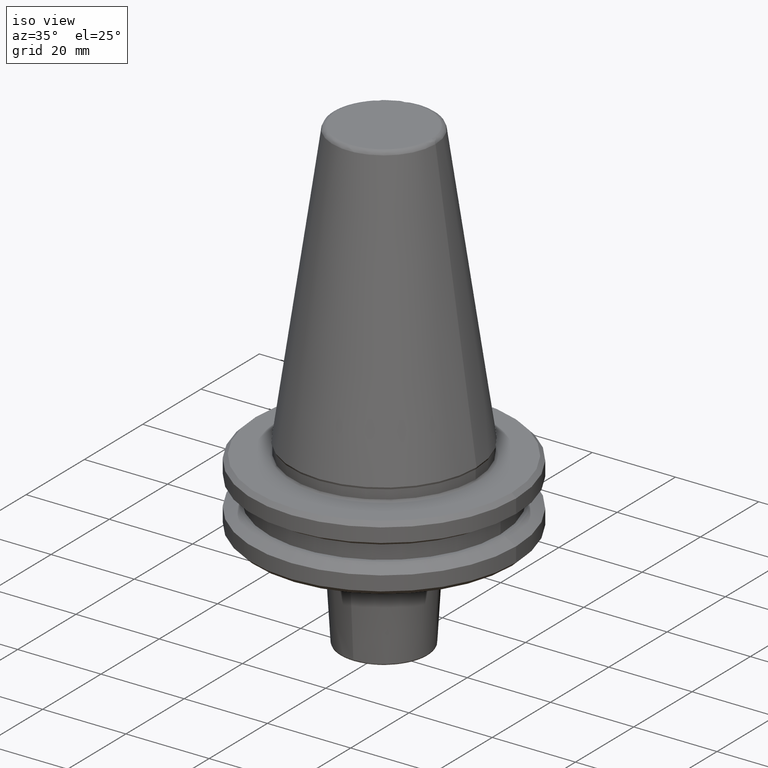
[diagram: clean part render]
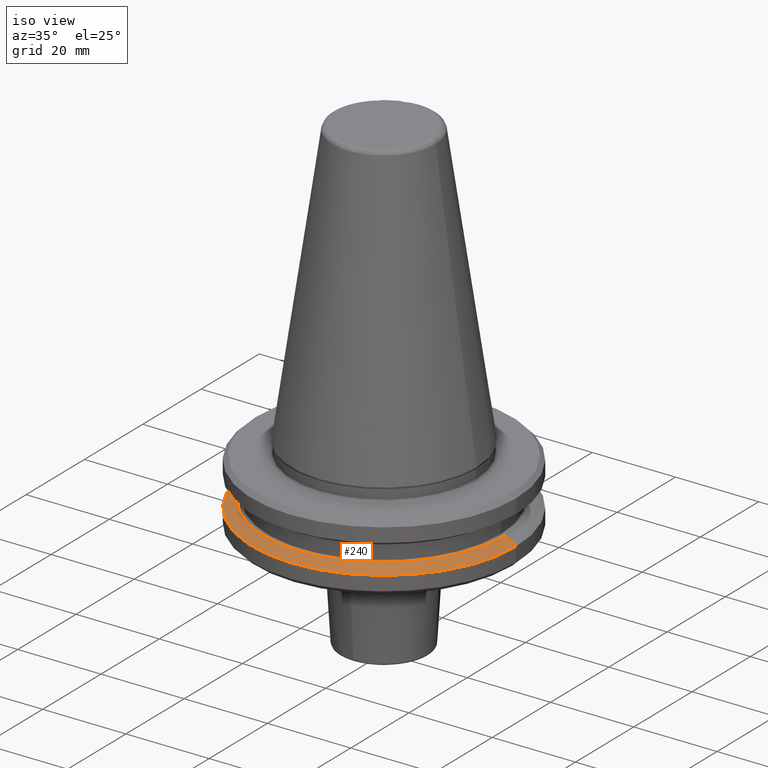
[diagram: same view with one face highlighted and labeled with its STEP entity id]
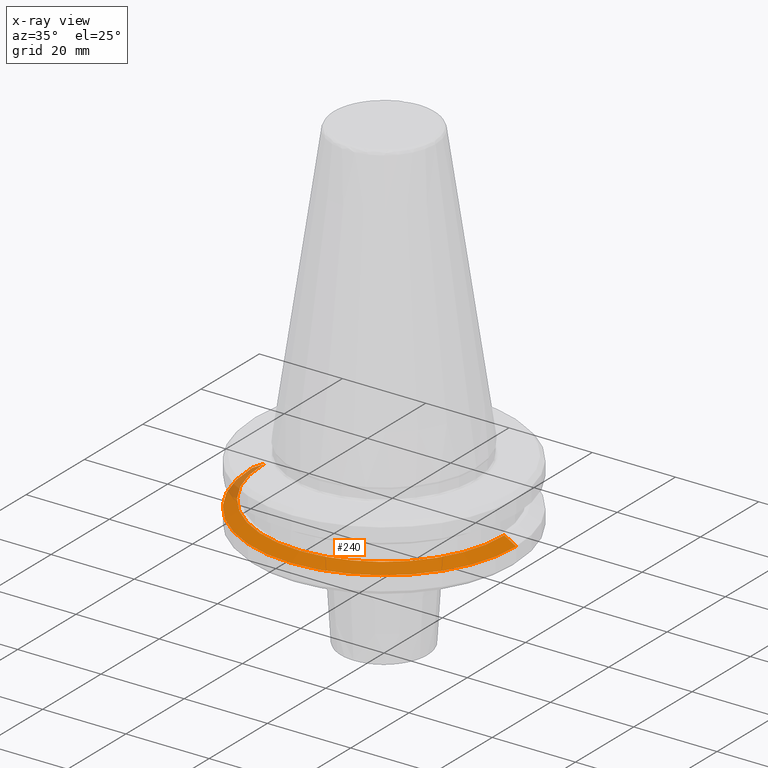
[diagram: x-ray of the same camera — body ghosted, the highlighted face saturated]
A machine part, iso view. The second image highlights one B-rep face of the part: STEP entity #240.
The next image is the same camera in x-ray: the body ghosted, the highlighted face saturated — about 5% of this face is hidden behind the body in this view.
In plain terms, the highlighted conical surface has half-angle 60 deg.
Its self-contained STEP definition (entity closure, byte-faithful):
#8 = CARTESIAN_POINT ( 'NONE',  ( -31.75000000000000000, 3.888253587292846500E-015, -14.62183664205671200 ) ) ;
#16 = CONICAL_SURFACE ( 'NONE', #1538, 31.75000000000000000, 1.047197551196604300 ) ;
#23 = DIRECTION ( 'NONE',  ( -0.8660254037844420400, 0.0000000000000000000, -0.4999999999999943900 ) ) ;
#91 = LINE ( 'NONE', #863, #281 ) ;
#99 = CARTESIAN_POINT ( 'NONE',  ( 0.0000000000000000000, 0.0000000000000000000, -14.62183664205671200 ) ) ;
#146 = DIRECTION ( 'NONE',  ( -1.000000000000000000, 0.0000000000000000000, 0.0000000000000000000 ) ) ;
#173 = VECTOR ( 'NONE', #208, 999.9999999999998900 ) ;
#208 = DIRECTION ( 'NONE',  ( 0.8660254037844420400, 1.060575238724911000E-016, -0.4999999999999943900 ) ) ;
#212 = CARTESIAN_POINT ( 'NONE',  ( 31.75000000000000000, 3.888253587292846500E-015, -14.62183664205671200 ) ) ;
#213 = CIRCLE ( 'NONE', #507, 28.94089653438084400 ) ;
#240 = ADVANCED_FACE ( 'NONE', ( #837 ), #16, .T. ) ;
#281 = VECTOR ( 'NONE', #23, 999.9999999999998900 ) ;
#507 = AXIS2_PLACEMENT_3D ( 'NONE', #880, #882, #884 ) ;
#560 = ORIENTED_EDGE ( 'NONE', *, *, #625, .T. ) ;
#625 = EDGE_CURVE ( 'NONE', #1256, #690, #213, .T. ) ;
#629 = AXIS2_PLACEMENT_3D ( 'NONE', #99, #1074, #1533 ) ;
#690 = VERTEX_POINT ( 'NONE', #967 ) ;
#718 = EDGE_LOOP ( 'NONE', ( #1184, #560, #1273, #836 ) ) ;
#755 = DIRECTION ( 'NONE',  ( 0.0000000000000000000, 0.0000000000000000000, -1.000000000000000000 ) ) ;
#836 = ORIENTED_EDGE ( 'NONE', *, *, #1316, .T. ) ;
#837 = FACE_OUTER_BOUND ( 'NONE', #718, .T. ) ;
#863 = CARTESIAN_POINT ( 'NONE',  ( -31.75000000000000000, 0.0000000000000000000, -14.62183664205671200 ) ) ;
#870 = CARTESIAN_POINT ( 'NONE',  ( 31.75000000000000000, 0.0000000000000000000, -14.62183664205671200 ) ) ;
#880 = CARTESIAN_POINT ( 'NONE',  ( 0.0000000000000000000, 0.0000000000000000000, -13.00000000000000500 ) ) ;
#882 = DIRECTION ( 'NONE',  ( 0.0000000000000000000, 0.0000000000000000000, -1.000000000000000000 ) ) ;
#884 = DIRECTION ( 'NONE',  ( -1.000000000000000000, 0.0000000000000000000, 0.0000000000000000000 ) ) ;
#907 = LINE ( 'NONE', #212, #173 ) ;
#943 = CIRCLE ( 'NONE', #629, 31.75000000000000000 ) ;
#948 = CARTESIAN_POINT ( 'NONE',  ( 0.0000000000000000000, 0.0000000000000000000, -14.62183664205671200 ) ) ;
#967 = CARTESIAN_POINT ( 'NONE',  ( -28.94089653438084400, 0.0000000000000000000, -13.00000000000000500 ) ) ;
#984 = CARTESIAN_POINT ( 'NONE',  ( 28.94089653438084400, 3.716245608910601600E-015, -13.00000000000000500 ) ) ;
#1018 = EDGE_CURVE ( 'NONE', #1256, #1440, #907, .T. ) ;
#1074 = DIRECTION ( 'NONE',  ( -0.0000000000000000000, -0.0000000000000000000, 1.000000000000000000 ) ) ;
#1106 = VERTEX_POINT ( 'NONE', #8 ) ;
#1123 = EDGE_CURVE ( 'NONE', #690, #1106, #91, .T. ) ;
#1184 = ORIENTED_EDGE ( 'NONE', *, *, #1018, .F. ) ;
#1256 = VERTEX_POINT ( 'NONE', #984 ) ;
#1273 = ORIENTED_EDGE ( 'NONE', *, *, #1123, .T. ) ;
#1316 = EDGE_CURVE ( 'NONE', #1106, #1440, #943, .T. ) ;
#1440 = VERTEX_POINT ( 'NONE', #870 ) ;
#1533 = DIRECTION ( 'NONE',  ( -1.000000000000000000, 0.0000000000000000000, 0.0000000000000000000 ) ) ;
#1538 = AXIS2_PLACEMENT_3D ( 'NONE', #948, #755, #146 ) ;